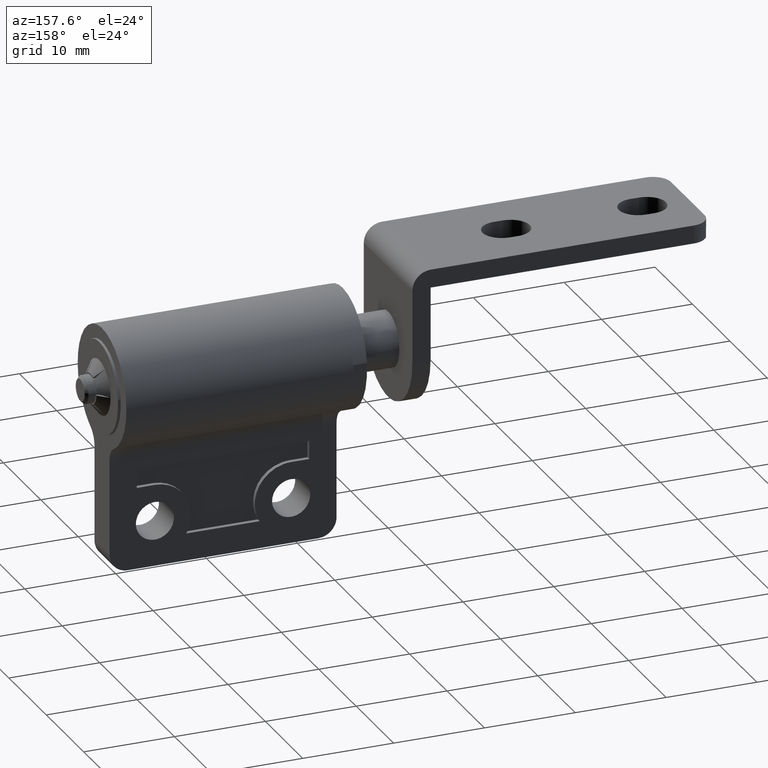
[diagram: clean part render]
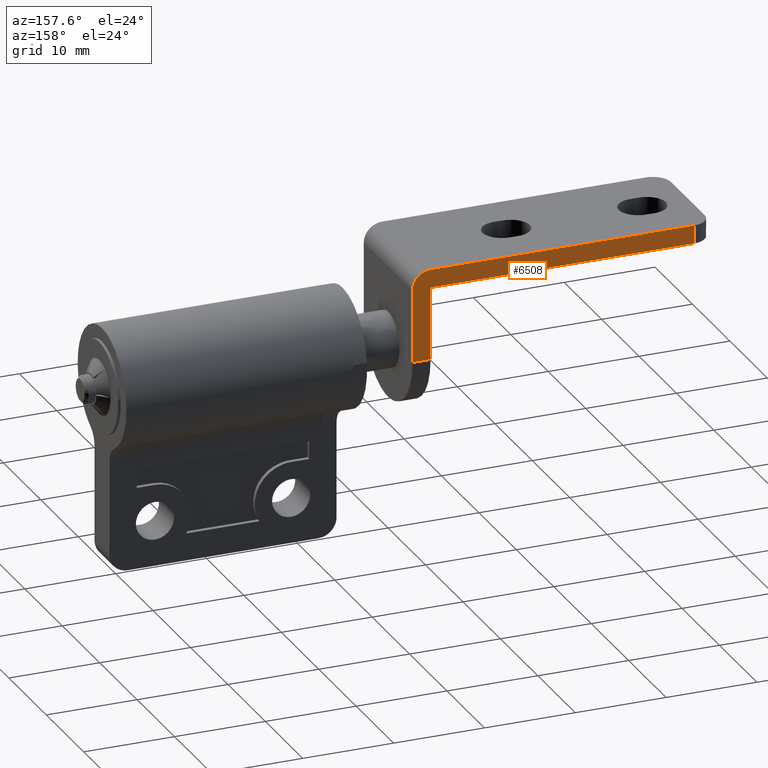
[diagram: same view with one face highlighted and labeled with its STEP entity id]
A machine part, auxiliary view. The second image highlights one B-rep face of the part: STEP entity #6508.
In plain terms, the highlighted face is a freeform B-spline surface patch.
Its self-contained STEP definition (entity closure, byte-faithful):
#5626=CARTESIAN_POINT('',(0.0,6.500000000000000,8.0));
#5627=VERTEX_POINT('',#5626);
#5633=CARTESIAN_POINT('',(-2.0,6.500000000000000,10.0));
#5634=VERTEX_POINT('',#5633);
#5635=CARTESIAN_POINT('',(-2.0,6.500000000000000,10.0));
#5636=CARTESIAN_POINT('',(0.0,6.500000000000001,10.000000000000002));
#5637=CARTESIAN_POINT('',(0.0,6.500000000000000,8.0));
#5645=(BOUNDED_CURVE()B_SPLINE_CURVE(2,(#5635,#5636,#5637),.UNSPECIFIED.,.F.,.U.)CURVE()GEOMETRIC_REPRESENTATION_ITEM()QUASI_UNIFORM_CURVE()RATIONAL_B_SPLINE_CURVE((1.0,0.707106781186548,1.0))REPRESENTATION_ITEM(''));
#5646=EDGE_CURVE('',#5634,#5627,#5645,.T.);
#5670=CARTESIAN_POINT('',(-31.0,6.500000000000000,10.0));
#5671=VERTEX_POINT('',#5670);
#5687=CARTESIAN_POINT('',(-31.0,6.500000000000000,8.0));
#5688=VERTEX_POINT('',#5687);
#5689=CARTESIAN_POINT('',(-31.0,6.500000000000000,8.0));
#5690=CARTESIAN_POINT('',(-31.0,6.500000000000000,10.0));
#5691=QUASI_UNIFORM_CURVE('',1,(#5689,#5690),.UNSPECIFIED.,.F.,.U.);
#5692=EDGE_CURVE('',#5688,#5671,#5691,.T.);
#6311=CARTESIAN_POINT('',(-2.0,6.500000000000000,-1.193991E-015));
#6312=VERTEX_POINT('',#6311);
#6337=CARTESIAN_POINT('',(-2.0,6.500000000000000,8.0));
#6338=VERTEX_POINT('',#6337);
#6344=CARTESIAN_POINT('',(-2.0,6.500000000000000,8.0));
#6345=CARTESIAN_POINT('',(-2.0,6.500000000000000,-1.193991E-015));
#6346=QUASI_UNIFORM_CURVE('',1,(#6344,#6345),.UNSPECIFIED.,.F.,.U.);
#6347=EDGE_CURVE('',#6338,#6312,#6346,.T.);
#6375=CARTESIAN_POINT('',(-31.0,6.500000000000000,8.0));
#6376=CARTESIAN_POINT('',(-2.0,6.500000000000000,8.0));
#6377=QUASI_UNIFORM_CURVE('',1,(#6375,#6376),.UNSPECIFIED.,.F.,.U.);
#6378=EDGE_CURVE('',#5688,#6338,#6377,.T.);
#6401=CARTESIAN_POINT('',(0.0,6.500000000000000,-1.193991E-015));
#6402=VERTEX_POINT('',#6401);
#6403=CARTESIAN_POINT('',(0.0,6.500000000000000,8.0));
#6404=CARTESIAN_POINT('',(0.0,6.500000000000000,-1.193991E-015));
#6405=QUASI_UNIFORM_CURVE('',1,(#6403,#6404),.UNSPECIFIED.,.F.,.U.);
#6406=EDGE_CURVE('',#5627,#6402,#6405,.T.);
#6451=CARTESIAN_POINT('',(-31.0,6.500000000000000,10.0));
#6452=CARTESIAN_POINT('',(-2.0,6.500000000000000,10.0));
#6453=QUASI_UNIFORM_CURVE('',1,(#6451,#6452),.UNSPECIFIED.,.F.,.U.);
#6454=EDGE_CURVE('',#5671,#5634,#6453,.T.);
#6490=CARTESIAN_POINT('',(-32.548449939915997,6.500000000000000,10.499499980618060));
#6491=CARTESIAN_POINT('',(-32.548449939915997,6.500000000000000,-0.499500248838962));
#6492=CARTESIAN_POINT('',(1.548450771400781,6.500000000000000,10.499499980618060));
#6493=CARTESIAN_POINT('',(1.548450771400781,6.500000000000000,-0.499500248838962));
#6494=B_SPLINE_SURFACE_WITH_KNOTS('',1,1,((#6490,#6492),(#6491,#6493)),.UNSPECIFIED.,.F.,.F.,.U.,(2,2),(2,2),(0.0,10.999000229457019),(0.0,34.096900711316778),.UNSPECIFIED.);
#6495=ORIENTED_EDGE('',*,*,#6454,.T.);
#6496=ORIENTED_EDGE('',*,*,#5646,.T.);
#6497=ORIENTED_EDGE('',*,*,#6406,.T.);
#6498=CARTESIAN_POINT('',(-2.0,6.500000000000000,-1.193991E-015));
#6499=CARTESIAN_POINT('',(0.0,6.500000000000000,-1.193991E-015));
#6500=QUASI_UNIFORM_CURVE('',1,(#6498,#6499),.UNSPECIFIED.,.F.,.U.);
#6501=EDGE_CURVE('',#6312,#6402,#6500,.T.);
#6502=ORIENTED_EDGE('',*,*,#6501,.F.);
#6503=ORIENTED_EDGE('',*,*,#6347,.F.);
#6504=ORIENTED_EDGE('',*,*,#6378,.F.);
#6505=ORIENTED_EDGE('',*,*,#5692,.T.);
#6506=EDGE_LOOP('',(#6495,#6496,#6497,#6502,#6503,#6504,#6505));
#6507=FACE_OUTER_BOUND('',#6506,.T.);
#6508=ADVANCED_FACE('',(#6507),#6494,.F.);